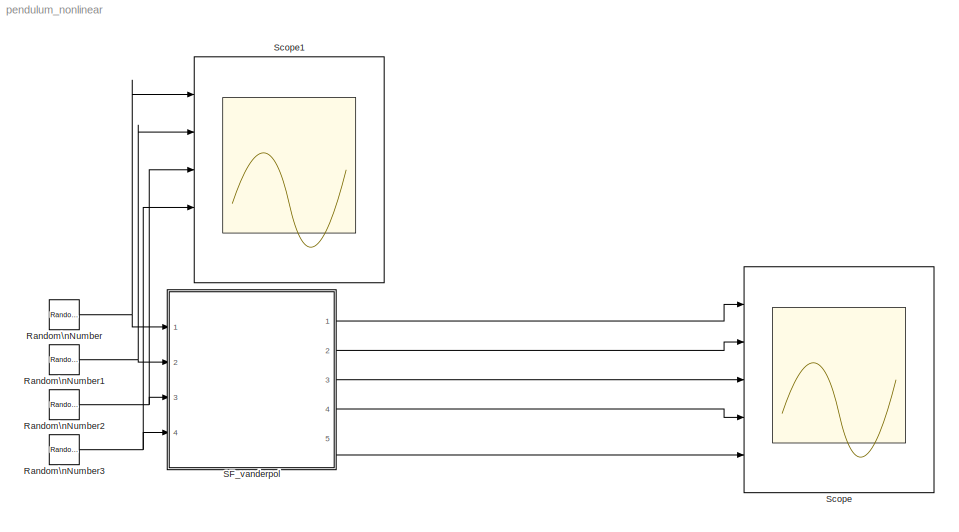
MODEL pendulum_nonlinear
KIND model
CONFIG InitFcn = T=1000;\nseed1=now()*rand(1,1);\nseed2=now()*rand(1,1);\nseed3=now()*rand(1,1);\nseed4=now()*rand(1,1);
BLOCK [RandomNumber] Random\nNumber
  SID = 3
  SampleTime = T
  Seed = seed1
  Variance = 5
BLOCK [RandomNumber] Random\nNumber1
  SID = 4
  SampleTime = T
  Seed = seed2
  Variance = 5
BLOCK [RandomNumber] Random\nNumber2
  SID = 5
  SampleTime = T
  Seed = seed3
  Variance = 5
BLOCK [RandomNumber] Random\nNumber3
  SID = 6
  SampleTime = T
  Seed = seed4
  Variance = 5
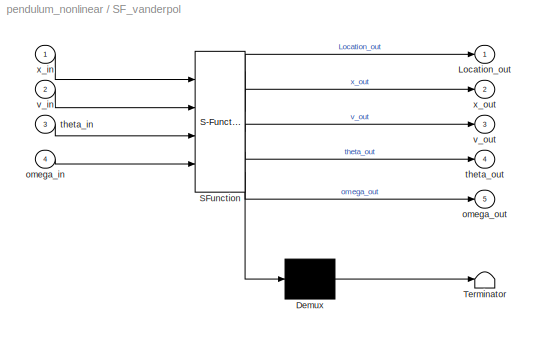
BLOCK [SubSystem] SF_vanderpol
  ErrorFcn = Stateflow.Translate.translate
  PermitHierarchicalResolution = ExplicitOnly
  Ports = [4, 5]
  RequestExecContextInheritance = off
  SFBlockType = Chart
  SID = 1
  TreatAsAtomicUnit = on
BLOCK [Demux] SF_vanderpol/ Demux 
  Outputs = 1
  Ports = [1, 1]
  SID = 1::74
BLOCK [S-Function] SF_vanderpol/ SFunction 
  EnableBusSupport = on
  FunctionName = sf_sfun
  PortCounts = [4 6]
  Ports = [4, 6]
  SID = 1::73
  Tag = Stateflow S-Function pendulum_nonlinear 3
BLOCK [Terminator] SF_vanderpol/ Terminator 
  SID = 1::75
BLOCK [Outport] SF_vanderpol/Location_out
  IconDisplay = Port number
  SID = 1::79
BLOCK [Inport] SF_vanderpol/omega_in
  IconDisplay = Port number
  Port = 4
  SID = 1::85
BLOCK [Outport] SF_vanderpol/omega_out
  IconDisplay = Port number
  Port = 5
  SID = 1::78
BLOCK [Inport] SF_vanderpol/theta_in
  IconDisplay = Port number
  Port = 3
  SID = 1::84
BLOCK [Outport] SF_vanderpol/theta_out
  IconDisplay = Port number
  Port = 4
  SID = 1::81
BLOCK [Inport] SF_vanderpol/v_in
  IconDisplay = Port number
  Port = 2
  SID = 1::83
BLOCK [Outport] SF_vanderpol/v_out
  IconDisplay = Port number
  Port = 3
  SID = 1::80
BLOCK [Inport] SF_vanderpol/x_in
  IconDisplay = Port number
  SID = 1::82
BLOCK [Outport] SF_vanderpol/x_out
  IconDisplay = Port number
  Port = 2
  SID = 1::77
BLOCK [Scope] Scope
  DataFormat = Structure
  Floating = off
  LimitDataPoints = off
  NumInputPorts = 5
  Ports = [5]
  SID = 2
  SaveToWorkspace = on
  YMax = 1.2e+10~700~6.5e+10~1.5735~1
  YMin = 0~-700~0~1.568~1
  ZoomMode = yonly
BLOCK [Scope] Scope1
  DataFormat = Structure
  Floating = off
  LimitDataPoints = off
  NumInputPorts = 5
  Ports = [5]
  SID = 8
  SaveName = ScopeData1
  SaveToWorkspace = on
  YMax = 1.2e+10~700~6.5e+10~1.5735~1.05
  YMin = 0~-700~0~1.568~0.95
  ZoomMode = yonly
NET Random\nNumber1:1 -> SF_vanderpol:2, Scope1:2
NET Random\nNumber2:1 -> SF_vanderpol:3, Scope1:3
NET Random\nNumber3:1 -> SF_vanderpol:4, Scope1:4
NET Random\nNumber:1 -> SF_vanderpol:1, Scope1:1
LINE SF_vanderpol/ Demux :1 -> SF_vanderpol/ Terminator :1
LINE SF_vanderpol/ SFunction :1 -> SF_vanderpol/ Demux :1
LINE SF_vanderpol/ SFunction :2 -> SF_vanderpol/Location_out:1
LINE SF_vanderpol/ SFunction :3 -> SF_vanderpol/x_out:1
LINE SF_vanderpol/ SFunction :4 -> SF_vanderpol/v_out:1
LINE SF_vanderpol/ SFunction :5 -> SF_vanderpol/theta_out:1
LINE SF_vanderpol/ SFunction :6 -> SF_vanderpol/omega_out:1
LINE SF_vanderpol/omega_in:1 -> SF_vanderpol/ SFunction :4
LINE SF_vanderpol/theta_in:1 -> SF_vanderpol/ SFunction :3
LINE SF_vanderpol/v_in:1 -> SF_vanderpol/ SFunction :2
LINE SF_vanderpol/x_in:1 -> SF_vanderpol/ SFunction :1
LINE SF_vanderpol:1 -> Scope:1
LINE SF_vanderpol:2 -> Scope:2
LINE SF_vanderpol:3 -> Scope:3
LINE SF_vanderpol:4 -> Scope:4
LINE SF_vanderpol:5 -> Scope:5
note: NET lines group one-source signal fan-out (src -> all destinations, sorted); 1:1 wires keep LINE
CHART SF_vanderpol states=1 transitions=3
  STATE_LABEL 'running\\ndu:\\nx_dot = v;\\nv_dot = -(omega^2*sin(theta) - (5401*v)/1900 + cos(theta)*((3*omega)/2500 + (147*sin(theta))/5))/(3*cos(theta)^2 - 29);\\ntheta_dot = omega;\\nomega_dot = ((87*omega)/2500 + (4263*sin(theta))/5 - cos(theta)*(- 3*sin(theta)*omega^2 + (16203*v)/1900))/(3*cos(theta)^2 - 29);\\nx_out=x;\\nv_out=v;\\ntheta_out=theta;\\nomega_out=omega;\\nLocation_out =1;'
